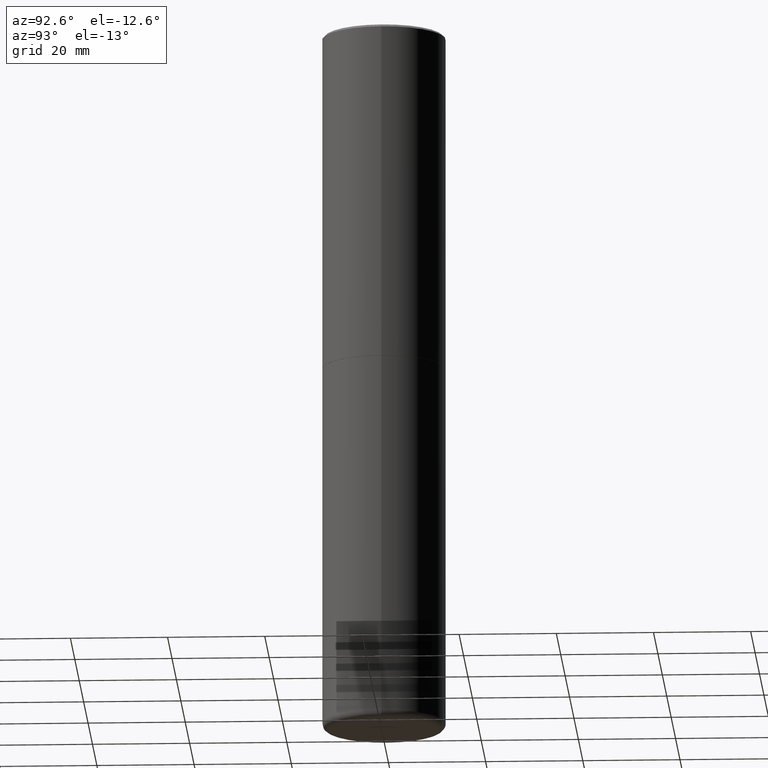
[diagram: clean part render]
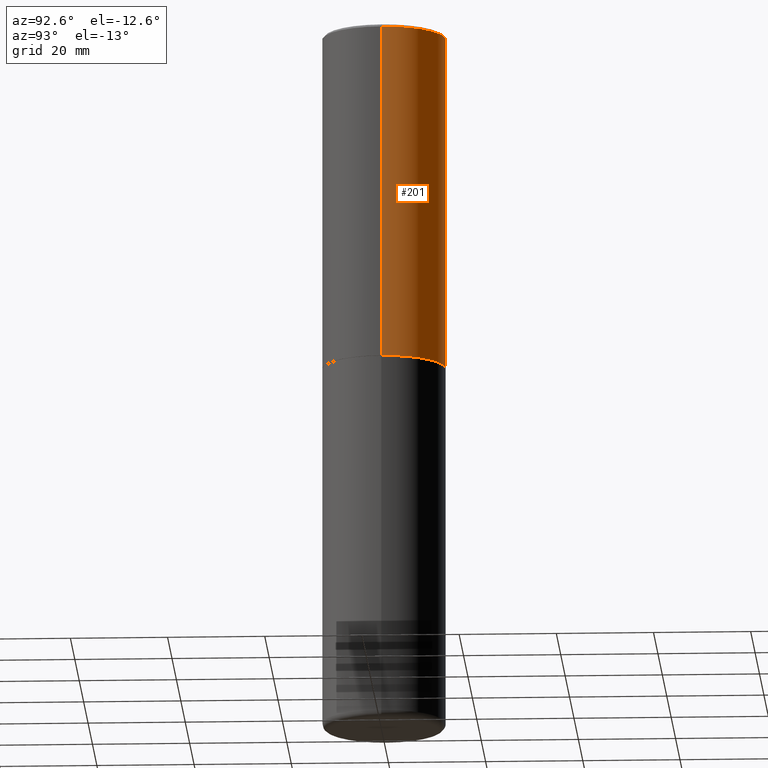
[diagram: same view with one face highlighted and labeled with its STEP entity id]
A machine part, auxiliary view. The second image highlights one B-rep face of the part: STEP entity #201.
In plain terms, the highlighted cylindrical surface (partial cylindrical patch) has radius 12.7 mm, axis along (-0, 0, 1).
Its self-contained STEP definition (entity closure, byte-faithful):
#14 = EDGE_CURVE ( 'NONE', #102, #51, #203, .T. ) ;
#31 = CARTESIAN_POINT ( 'NONE',  ( 4.890937612370299433E-31, -6.982962677686328587E-17, -0.02000000000000010797 ) ) ;
#33 = AXIS2_PLACEMENT_3D ( 'NONE', #31, #159, #413 ) ;
#51 = VERTEX_POINT ( 'NONE', #83 ) ;
#55 = CARTESIAN_POINT ( 'NONE',  ( 0.000000000000000000, 0.000000000000000000, 0.000000000000000000 ) ) ;
#73 = AXIS2_PLACEMENT_3D ( 'NONE', #383, #351, #195 ) ;
#78 = ORIENTED_EDGE ( 'NONE', *, *, #14, .F. ) ;
#83 = CARTESIAN_POINT ( 'NONE',  ( 0.5000000000000000000, -3.500078625662629079E-15, -0.02000000000000010797 ) ) ;
#94 = DIRECTION ( 'NONE',  ( -2.445468806185136877E-29, 3.491481338843145188E-15, 1.000000000000000000 ) ) ;
#102 = VERTEX_POINT ( 'NONE', #345 ) ;
#117 = ORIENTED_EDGE ( 'NONE', *, *, #241, .T. ) ;
#118 = CYLINDRICAL_SURFACE ( 'NONE', #140, 0.5000000000000001110 ) ;
#120 = VECTOR ( 'NONE', #400, 39.37007874015748143 ) ;
#123 = DIRECTION ( 'NONE',  ( 1.000000000000000000, -6.982962677686267499E-15, 4.876176775795935793E-29 ) ) ;
#135 = VECTOR ( 'NONE', #94, 39.37007874015748143 ) ;
#140 = AXIS2_PLACEMENT_3D ( 'NONE', #55, #240, #123 ) ;
#151 = VERTEX_POINT ( 'NONE', #186 ) ;
#159 = DIRECTION ( 'NONE',  ( -2.445468806185136597E-29, 3.491481338843145583E-15, 1.000000000000000000 ) ) ;
#176 = VERTEX_POINT ( 'NONE', #411 ) ;
#186 = CARTESIAN_POINT ( 'NONE',  ( -0.5000000000000003331, -1.281242234827828821E-15, -2.748999999999999666 ) ) ;
#195 = DIRECTION ( 'NONE',  ( 1.000000000000000000, -6.982962677686265922E-15, 0.000000000000000000 ) ) ;
#201 = ADVANCED_FACE ( 'NONE', ( #281 ), #118, .T. ) ;
#203 = LINE ( 'NONE', #275, #120 ) ;
#218 = ORIENTED_EDGE ( 'NONE', *, *, #339, .T. ) ;
#230 = EDGE_LOOP ( 'NONE', ( #218, #117, #248, #78 ) ) ;
#240 = DIRECTION ( 'NONE',  ( -2.445468806185136597E-29, 3.491481338843145583E-15, 1.000000000000000000 ) ) ;
#241 = EDGE_CURVE ( 'NONE', #151, #176, #278, .T. ) ;
#245 = EDGE_CURVE ( 'NONE', #51, #176, #379, .T. ) ;
#248 = ORIENTED_EDGE ( 'NONE', *, *, #245, .F. ) ;
#250 = CIRCLE ( 'NONE', #73, 0.5000000000000003331 ) ;
#275 = CARTESIAN_POINT ( 'NONE',  ( 0.5000000000000001110, -3.491481338843134539E-15, 2.438088387897968457E-29 ) ) ;
#278 = LINE ( 'NONE', #406, #135 ) ;
#281 = FACE_OUTER_BOUND ( 'NONE', #230, .T. ) ;
#339 = EDGE_CURVE ( 'NONE', #102, #151, #250, .T. ) ;
#345 = CARTESIAN_POINT ( 'NONE',  ( 0.5000000000000003331, -1.308956353932294179E-14, -2.748999999999999666 ) ) ;
#351 = DIRECTION ( 'NONE',  ( -2.445468806185136597E-29, 3.491481338843145583E-15, 1.000000000000000000 ) ) ;
#379 = CIRCLE ( 'NONE', #33, 0.5000000000000000000 ) ;
#383 = CARTESIAN_POINT ( 'NONE',  ( 6.722593748202938917E-29, -9.598082200479805274E-15, -2.748999999999999666 ) ) ;
#400 = DIRECTION ( 'NONE',  ( -2.445468806185136877E-29, 3.491481338843145188E-15, 1.000000000000000000 ) ) ;
#406 = CARTESIAN_POINT ( 'NONE',  ( -0.5000000000000001110, 3.552713678800501718E-15, -2.459467545127453732E-29 ) ) ;
#411 = CARTESIAN_POINT ( 'NONE',  ( -0.5000000000000000000, 3.421651712066270057E-15, -0.02000000000000010797 ) ) ;
#413 = DIRECTION ( 'NONE',  ( 1.000000000000000000, -6.982962677686266711E-15, 0.000000000000000000 ) ) ;